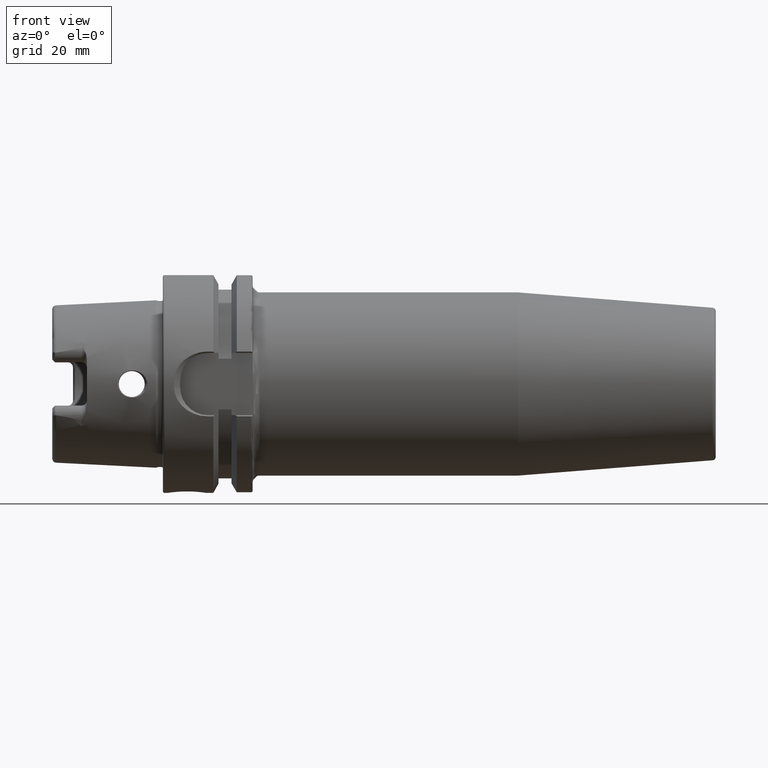
[diagram: clean part render]
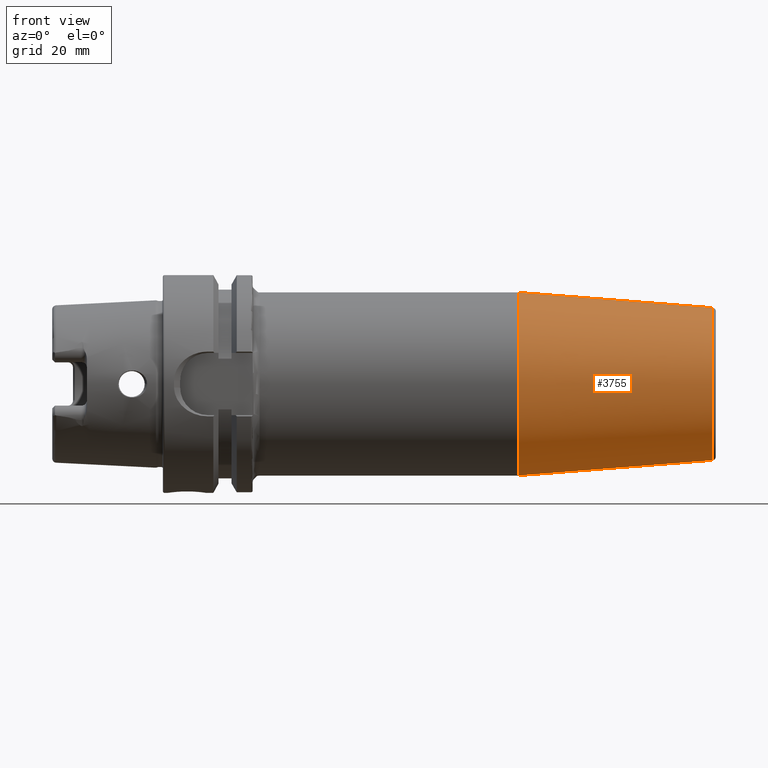
[diagram: same view with one face highlighted and labeled with its STEP entity id]
A machine part, front view. The second image highlights one B-rep face of the part: STEP entity #3755.
In plain terms, the highlighted conical surface has half-angle 4.5 deg.
Its self-contained STEP definition (entity closure, byte-faithful):
#594=DIRECTION('',(-9.969173337331E-1,0.E0,-7.845909572784E-2));
#595=VECTOR('',#594,5.643033630266E1);
#596=CARTESIAN_POINT('',(1.590784590957E2,0.E0,-2.207252684208E1));
#597=LINE('',#596,#595);
#598=DIRECTION('',(-9.969173337331E-1,0.E0,7.845909572784E-2));
#599=VECTOR('',#598,5.643033630266E1);
#600=CARTESIAN_POINT('',(1.590784590957E2,0.E0,2.207252684208E1));
#601=LINE('',#600,#599);
#602=CARTESIAN_POINT('',(1.590784590957E2,0.E0,0.E0));
#603=DIRECTION('',(-1.E0,0.E0,0.E0));
#604=DIRECTION('',(0.E0,0.E0,-1.E0));
#605=AXIS2_PLACEMENT_3D('',#602,#603,#604);
#615=CARTESIAN_POINT('',(1.028220786872E2,0.E0,0.E0));
#616=DIRECTION('',(-1.E0,0.E0,0.E0));
#617=DIRECTION('',(0.E0,0.E0,-1.E0));
#618=AXIS2_PLACEMENT_3D('',#615,#616,#617);
#2999=CARTESIAN_POINT('',(1.590784590957E2,0.E0,-2.207252684208E1));
#3001=VERTEX_POINT('',#2999);
#3002=CARTESIAN_POINT('',(1.028220786872E2,0.E0,-2.65E1));
#3003=VERTEX_POINT('',#3002);
#3021=CARTESIAN_POINT('',(1.590784590957E2,0.E0,2.207252684208E1));
#3023=VERTEX_POINT('',#3021);
#3024=CARTESIAN_POINT('',(1.028220786872E2,0.E0,2.65E1));
#3025=VERTEX_POINT('',#3024);
#3743=CARTESIAN_POINT('',(1.309502688915E2,0.E0,0.E0));
#3744=DIRECTION('',(-1.E0,0.E0,0.E0));
#3745=DIRECTION('',(0.E0,0.E0,-1.E0));
#3746=AXIS2_PLACEMENT_3D('',#3743,#3744,#3745);
#3747=CONICAL_SURFACE('',#3746,2.428626342104E1,4.5E0);
#3748=ORIENTED_EDGE('',*,*,#3733,.T.);
#3750=ORIENTED_EDGE('',*,*,#3749,.T.);
#3751=ORIENTED_EDGE('',*,*,#3736,.F.);
#3752=ORIENTED_EDGE('',*,*,#3707,.F.);
#3753=EDGE_LOOP('',(#3748,#3750,#3751,#3752));
#3754=FACE_OUTER_BOUND('',#3753,.F.);
#3755=ADVANCED_FACE('',(#3754),#3747,.T.);
#606=CIRCLE('',#605,2.207252684208E1);
#619=CIRCLE('',#618,2.65E1);
#3707=EDGE_CURVE('',#3001,#3023,#606,.T.);
#3733=EDGE_CURVE('',#3001,#3003,#597,.T.);
#3736=EDGE_CURVE('',#3023,#3025,#601,.T.);
#3749=EDGE_CURVE('',#3003,#3025,#619,.T.);